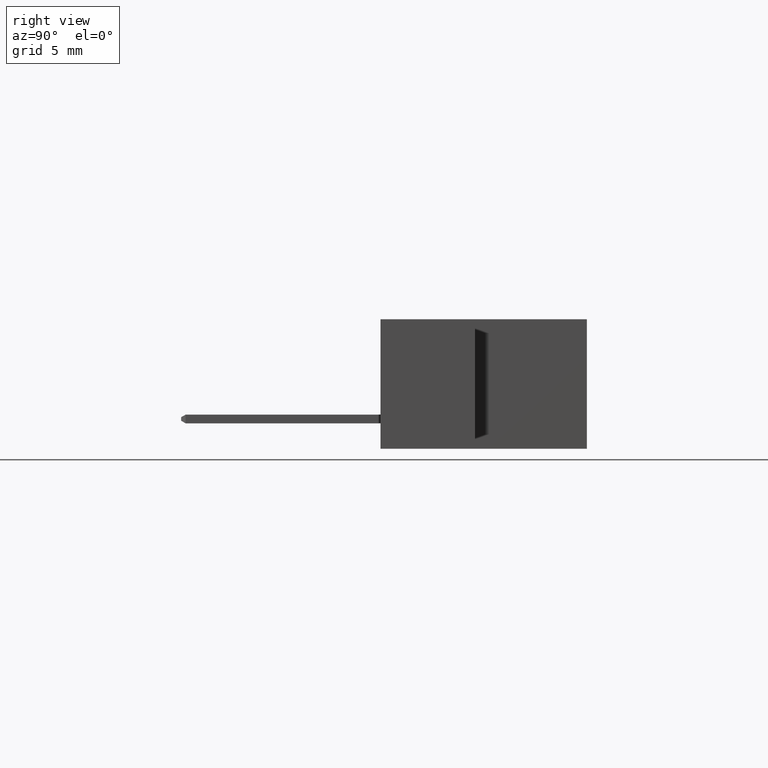
[diagram: clean part render]
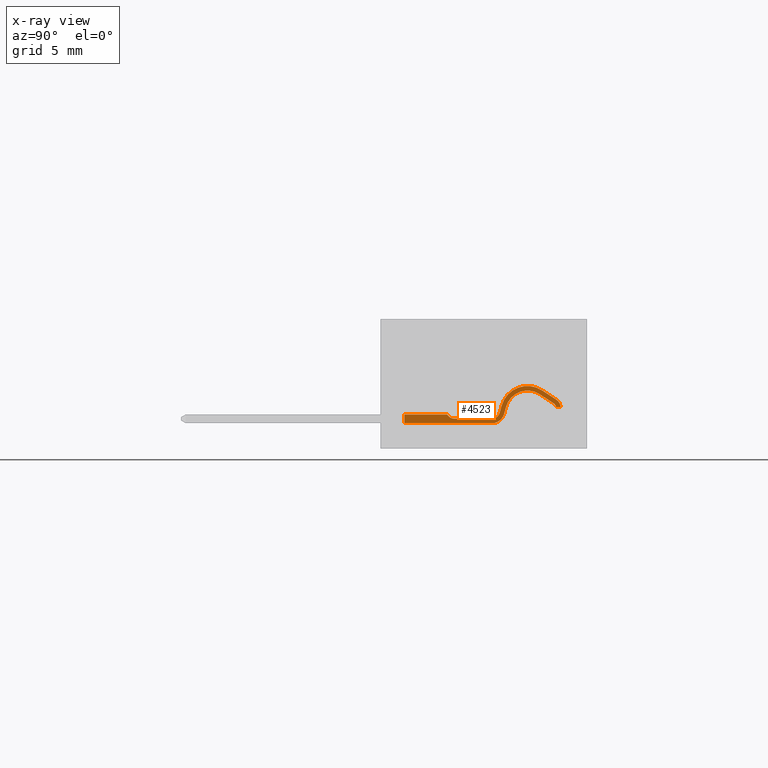
[diagram: x-ray — body ghosted, one internal face saturated and labeled with its STEP entity id]
A machine part, right view, then the same camera in x-ray: the body is ghosted and one INTERNAL B-rep face — a face not visible from any outside direction — is saturated and labeled: STEP entity #4523.
In plain terms, the highlighted planar face has unit normal (1, -0, 0).
Its self-contained STEP definition (entity closure, byte-faithful):
#44 = EDGE_LOOP ( 'NONE', ( #1834, #8979, #1513, #1386, #4441, #4100, #3955, #3529, #919, #498, #8111, #1373, #993, #823, #772, #619, #2179 ) ) ;
#55 = CARTESIAN_POINT ( 'NONE',  ( 0.4372132034355987700, 0.02549999999999410000, 0.02499999999999987000 ) ) ;
#66 = CARTESIAN_POINT ( 'NONE',  ( 0.1451768499521856900, 0.07965726579261930800, 0.02499999999999987000 ) ) ;
#105 = CARTESIAN_POINT ( 'NONE',  ( 0.1931676058038884800, 0.09559382557854878600, 0.02499999999999987000 ) ) ;
#157 = VECTOR ( 'NONE', #4060, 39.37007874015748100 ) ;
#193 = CARTESIAN_POINT ( 'NONE',  ( 0.3073628610514996300, 0.04269048811508388600, 0.02499999999999987000 ) ) ;
#234 = EDGE_CURVE ( 'NONE', #1043, #3950, #8834, .T. ) ;
#352 = CIRCLE ( 'NONE', #4210, 0.07649999999999998500 ) ;
#355 = DIRECTION ( 'NONE',  ( 1.000000000000000000, -5.449164880979240100E-015, 2.125174303581904000E-014 ) ) ;
#433 = VECTOR ( 'NONE', #8570, 39.37007874015748900 ) ;
#471 = EDGE_CURVE ( 'NONE', #2838, #3498, #2256, .T. ) ;
#492 = VECTOR ( 'NONE', #3507, 39.37007874015748100 ) ;
#498 = ORIENTED_EDGE ( 'NONE', *, *, #1290, .T. ) ;
#619 = ORIENTED_EDGE ( 'NONE', *, *, #1808, .F. ) ;
#737 = EDGE_CURVE ( 'NONE', #3398, #9151, #1850, .T. ) ;
#772 = ORIENTED_EDGE ( 'NONE', *, *, #8404, .F. ) ;
#822 = DIRECTION ( 'NONE',  ( 0.8361232374575536800, 0.5485416408838066400, 1.762539651899351900E-014 ) ) ;
#823 = ORIENTED_EDGE ( 'NONE', *, *, #7503, .F. ) ;
#919 = ORIENTED_EDGE ( 'NONE', *, *, #234, .F. ) ;
#993 = ORIENTED_EDGE ( 'NONE', *, *, #6542, .F. ) ;
#1043 = VERTEX_POINT ( 'NONE', #3465 ) ;
#1139 = VERTEX_POINT ( 'NONE', #6533 ) ;
#1165 = CARTESIAN_POINT ( 'NONE',  ( 0.1451768499521856900, 0.07965726579261930800, 0.02499999999999987000 ) ) ;
#1290 = EDGE_CURVE ( 'NONE', #1043, #6732, #3461, .T. ) ;
#1373 = ORIENTED_EDGE ( 'NONE', *, *, #9416, .T. ) ;
#1386 = ORIENTED_EDGE ( 'NONE', *, *, #737, .T. ) ;
#1460 = CARTESIAN_POINT ( 'NONE',  ( 0.1523078912836752000, 0.06878766370567110400, 0.02499999999999987000 ) ) ;
#1489 = CARTESIAN_POINT ( 'NONE',  ( 0.2948401884416852500, 0.03920011983832501900, 0.02499999999999987000 ) ) ;
#1513 = ORIENTED_EDGE ( 'NONE', *, *, #4974, .T. ) ;
#1562 = LINE ( 'NONE', #1165, #5481 ) ;
#1611 = CARTESIAN_POINT ( 'NONE',  ( 0.3300000000000102900, 0.02549999999999406600, 0.02499999999999987000 ) ) ;
#1808 = EDGE_CURVE ( 'NONE', #6950, #1139, #352, .T. ) ;
#1815 = VECTOR ( 'NONE', #8227, 39.37007874015748100 ) ;
#1834 = ORIENTED_EDGE ( 'NONE', *, *, #3342, .F. ) ;
#1850 = LINE ( 'NONE', #1856, #5749 ) ;
#1856 = CARTESIAN_POINT ( 'NONE',  ( 0.1523078912836752000, 0.06878766370567110400, 0.02499999999999987000 ) ) ;
#1904 = VERTEX_POINT ( 'NONE', #193 ) ;
#1961 = DIRECTION ( 'NONE',  ( 0.8361232374575536800, 0.5485416408838066400, 1.762539651899351900E-014 ) ) ;
#2014 = LINE ( 'NONE', #4068, #157 ) ;
#2102 = VECTOR ( 'NONE', #4809, 39.37007874015748100 ) ;
#2136 = DIRECTION ( 'NONE',  ( -2.116696985329355200E-014, 1.327134286314529600E-016, -1.000000000000000000 ) ) ;
#2177 = CARTESIAN_POINT ( 'NONE',  ( 0.1860365644723990000, 0.1064634276654969900, 0.02499999999999987000 ) ) ;
#2179 = ORIENTED_EDGE ( 'NONE', *, *, #9368, .F. ) ;
#2256 = LINE ( 'NONE', #9747, #8268 ) ;
#2327 = LINE ( 'NONE', #8920, #433 ) ;
#2552 = EDGE_CURVE ( 'NONE', #8729, #7061, #9558, .T. ) ;
#2602 = AXIS2_PLACEMENT_3D ( 'NONE', #8708, #8765, #8750 ) ;
#2611 = VECTOR ( 'NONE', #7727, 39.37007874015748100 ) ;
#2796 = DIRECTION ( 'NONE',  ( 1.000000000000000000, -5.379495193003257400E-015, 2.116714412899108000E-014 ) ) ;
#2806 = CARTESIAN_POINT ( 'NONE',  ( 0.3300000000000102900, 0.04899999999999410400, 0.02499999999999987000 ) ) ;
#2838 = VERTEX_POINT ( 'NONE', #8270 ) ;
#2846 = DIRECTION ( 'NONE',  ( 2.116696985329355200E-014, -1.327134286314529600E-016, 1.000000000000000000 ) ) ;
#2850 = LINE ( 'NONE', #3951, #2611 ) ;
#2985 = DIRECTION ( 'NONE',  ( -2.116696985329355200E-014, 1.327134286314529600E-016, -1.000000000000000000 ) ) ;
#3037 = DIRECTION ( 'NONE',  ( -1.000000000000000000, 5.058977766044929500E-015, -2.118446939531314200E-014 ) ) ;
#3098 = CARTESIAN_POINT ( 'NONE',  ( 0.1597132034356065800, 0.05749999999999412500, 0.02499999999999987000 ) ) ;
#3332 = CARTESIAN_POINT ( 'NONE',  ( 0.4582132034355987900, 0.03749999999999423900, 0.02499999999999987000 ) ) ;
#3342 = EDGE_CURVE ( 'NONE', #2838, #3854, #4783, .T. ) ;
#3362 = CIRCLE ( 'NONE', #5518, 0.02350000000000003500 ) ;
#3398 = VERTEX_POINT ( 'NONE', #1460 ) ;
#3461 = LINE ( 'NONE', #7702, #8701 ) ;
#3465 = CARTESIAN_POINT ( 'NONE',  ( 0.5802132034356045600, 0.03749999999999219200, 0.02499999999999987000 ) ) ;
#3498 = VERTEX_POINT ( 'NONE', #8136 ) ;
#3507 = DIRECTION ( 'NONE',  ( 5.301315481592246300E-015, -1.000000000000000000, 1.327134286314530100E-016 ) ) ;
#3529 = ORIENTED_EDGE ( 'NONE', *, *, #8457, .T. ) ;
#3545 = DIRECTION ( 'NONE',  ( -2.116696985329355200E-014, 1.327134286314529600E-016, -1.000000000000000000 ) ) ;
#3616 = CARTESIAN_POINT ( 'NONE',  ( 0.4372132034355987700, 0.04722792206135183900, 0.02499999999999987000 ) ) ;
#3854 = VERTEX_POINT ( 'NONE', #66 ) ;
#3950 = VERTEX_POINT ( 'NONE', #8930 ) ;
#3951 = CARTESIAN_POINT ( 'NONE',  ( 0.3016911118962256600, 0.06303947485938277100, 0.02499999999999987000 ) ) ;
#3954 = CIRCLE ( 'NONE', #5146, 0.06350000000000001500 ) ;
#3955 = ORIENTED_EDGE ( 'NONE', *, *, #4982, .T. ) ;
#3960 = EDGE_CURVE ( 'NONE', #6732, #7737, #2327, .T. ) ;
#4060 = DIRECTION ( 'NONE',  ( 1.000000000000000000, -4.942995692798874600E-015, 2.116696985329355200E-014 ) ) ;
#4068 = CARTESIAN_POINT ( 'NONE',  ( 0.3300000000000102900, 0.02549999999999406600, 0.02499999999999987000 ) ) ;
#4088 = DIRECTION ( 'NONE',  ( -1.000000000000000000, 5.356564693459340800E-015, -2.114727102938635500E-014 ) ) ;
#4100 = ORIENTED_EDGE ( 'NONE', *, *, #2552, .T. ) ;
#4210 = AXIS2_PLACEMENT_3D ( 'NONE', #8744, #2136, #4088 ) ;
#4297 = CARTESIAN_POINT ( 'NONE',  ( 0.2891684392864112800, 0.05954910658262390500, 0.02499999999999987000 ) ) ;
#4392 = DIRECTION ( 'NONE',  ( 1.000000000000000000, -5.107774430946911300E-015, 2.121690917470255400E-014 ) ) ;
#4441 = ORIENTED_EDGE ( 'NONE', *, *, #8094, .T. ) ;
#4523 = ADVANCED_FACE ( 'NONE', ( #5686 ), #8994, .F. ) ;
#4756 = VERTEX_POINT ( 'NONE', #6091 ) ;
#4783 = CIRCLE ( 'NONE', #6664, 0.02649999999999999200 ) ;
#4809 = DIRECTION ( 'NONE',  ( 1.000000000000000000, -4.942995692798874600E-015, 2.116696985329355200E-014 ) ) ;
#4974 = EDGE_CURVE ( 'NONE', #3498, #3398, #7410, .T. ) ;
#4982 = EDGE_CURVE ( 'NONE', #7061, #4756, #9310, .T. ) ;
#5021 = AXIS2_PLACEMENT_3D ( 'NONE', #3098, #2985, #3037 ) ;
#5146 = AXIS2_PLACEMENT_3D ( 'NONE', #8035, #3545, #8742 ) ;
#5481 = VECTOR ( 'NONE', #1961, 39.37007874015748900 ) ;
#5518 = AXIS2_PLACEMENT_3D ( 'NONE', #6235, #5769, #355 ) ;
#5686 = FACE_OUTER_BOUND ( 'NONE', #44, .T. ) ;
#5749 = VECTOR ( 'NONE', #822, 39.37007874015748900 ) ;
#5769 = DIRECTION ( 'NONE',  ( 2.116696985329355200E-014, -1.327134286314529600E-016, 1.000000000000000000 ) ) ;
#6091 = CARTESIAN_POINT ( 'NONE',  ( 0.3300000000000102900, 0.01249999999999406100, 0.02499999999999987000 ) ) ;
#6235 = CARTESIAN_POINT ( 'NONE',  ( 0.3300000000000102900, 0.04899999999999410400, 0.02499999999999987000 ) ) ;
#6293 = CARTESIAN_POINT ( 'NONE',  ( 0.5802132034356045600, 0.03749999999999219200, 0.02499999999999987000 ) ) ;
#6524 = AXIS2_PLACEMENT_3D ( 'NONE', #2806, #2846, #2796 ) ;
#6533 = CARTESIAN_POINT ( 'NONE',  ( 0.3016911118962256600, 0.06303947485938277100, 0.02499999999999987000 ) ) ;
#6542 = EDGE_CURVE ( 'NONE', #7040, #7878, #2014, .T. ) ;
#6562 = CARTESIAN_POINT ( 'NONE',  ( 0.2891684392864112800, 0.05954910658262390500, 0.02499999999999987000 ) ) ;
#6664 = AXIS2_PLACEMENT_3D ( 'NONE', #7309, #7278, #7427 ) ;
#6732 = VERTEX_POINT ( 'NONE', #3332 ) ;
#6950 = VERTEX_POINT ( 'NONE', #2177 ) ;
#7040 = VERTEX_POINT ( 'NONE', #1611 ) ;
#7061 = VERTEX_POINT ( 'NONE', #1489 ) ;
#7167 = DIRECTION ( 'NONE',  ( 1.000000000000000000, -5.301315481592246300E-015, 2.116696985329361800E-014 ) ) ;
#7278 = DIRECTION ( 'NONE',  ( -2.116696985329355200E-014, 1.327134286314529600E-016, -1.000000000000000000 ) ) ;
#7309 = CARTESIAN_POINT ( 'NONE',  ( 0.1597132034356065800, 0.05749999999999412500, 0.02499999999999987000 ) ) ;
#7410 = CIRCLE ( 'NONE', #5021, 0.01350000000000000700 ) ;
#7427 = DIRECTION ( 'NONE',  ( -1.000000000000000000, 5.154430176725026200E-015, -2.110094853596807800E-014 ) ) ;
#7503 = EDGE_CURVE ( 'NONE', #1904, #7040, #3362, .T. ) ;
#7702 = CARTESIAN_POINT ( 'NONE',  ( 0.4582132034355987900, 0.03749999999999423900, 0.02499999999999987000 ) ) ;
#7727 = DIRECTION ( 'NONE',  ( 0.2684898674429880800, -0.9632825084472607100, 5.810957454517123800E-015 ) ) ;
#7737 = VERTEX_POINT ( 'NONE', #8315 ) ;
#7878 = VERTEX_POINT ( 'NONE', #55 ) ;
#8035 = CARTESIAN_POINT ( 'NONE',  ( 0.2280000000000102500, 0.04249999999999415400, 0.02499999999999987000 ) ) ;
#8094 = EDGE_CURVE ( 'NONE', #9151, #8729, #3954, .T. ) ;
#8111 = ORIENTED_EDGE ( 'NONE', *, *, #3960, .T. ) ;
#8136 = CARTESIAN_POINT ( 'NONE',  ( 0.1462224658723745600, 0.05799999999999429900, 0.02499999999999987000 ) ) ;
#8137 = LINE ( 'NONE', #9186, #2102 ) ;
#8227 = DIRECTION ( 'NONE',  ( 0.2684898674429880800, -0.9632825084472607100, 5.810957454517123800E-015 ) ) ;
#8268 = VECTOR ( 'NONE', #7167, 39.37007874015748100 ) ;
#8270 = CARTESIAN_POINT ( 'NONE',  ( 0.1332179208366230400, 0.05799999999999429900, 0.02499999999999987000 ) ) ;
#8315 = CARTESIAN_POINT ( 'NONE',  ( 0.4525771644662779900, 0.03186396103067323100, 0.02499999999999987000 ) ) ;
#8404 = EDGE_CURVE ( 'NONE', #1139, #1904, #2850, .T. ) ;
#8457 = EDGE_CURVE ( 'NONE', #4756, #3950, #8137, .T. ) ;
#8570 = DIRECTION ( 'NONE',  ( -0.7071067811865292500, -0.7071067811865656700, -1.487346535509506000E-014 ) ) ;
#8639 = DIRECTION ( 'NONE',  ( -1.000000000000000000, 5.301315481592247100E-015, -2.120195766058952000E-014 ) ) ;
#8678 = CIRCLE ( 'NONE', #9304, 0.02172792206135780400 ) ;
#8701 = VECTOR ( 'NONE', #8639, 39.37007874015748100 ) ;
#8708 = CARTESIAN_POINT ( 'NONE',  ( 0.09500000000001032600, 0.02499999999999413500, 0.02499999999999987000 ) ) ;
#8729 = VERTEX_POINT ( 'NONE', #4297 ) ;
#8742 = DIRECTION ( 'NONE',  ( -1.000000000000000000, 5.243212192564283700E-015, -2.117451077766345200E-014 ) ) ;
#8744 = CARTESIAN_POINT ( 'NONE',  ( 0.2280000000000102500, 0.04249999999999415400, 0.02499999999999987000 ) ) ;
#8750 = DIRECTION ( 'NONE',  ( -1.000000000000000000, 5.301315481592246300E-015, -2.116696985329361800E-014 ) ) ;
#8765 = DIRECTION ( 'NONE',  ( 2.116696985329361800E-014, 1.327134286312285300E-016, -1.000000000000000000 ) ) ;
#8815 = DIRECTION ( 'NONE',  ( -2.116696985329355200E-014, 1.327134286314529600E-016, -1.000000000000000000 ) ) ;
#8834 = LINE ( 'NONE', #6293, #492 ) ;
#8920 = CARTESIAN_POINT ( 'NONE',  ( 0.4582132034355987900, 0.03749999999999423900, 0.02499999999999987000 ) ) ;
#8930 = CARTESIAN_POINT ( 'NONE',  ( 0.5802132034356045600, 0.01249999999999214900, 0.02499999999999987000 ) ) ;
#8979 = ORIENTED_EDGE ( 'NONE', *, *, #471, .T. ) ;
#8994 = PLANE ( 'NONE',  #2602 ) ;
#9151 = VERTEX_POINT ( 'NONE', #105 ) ;
#9186 = CARTESIAN_POINT ( 'NONE',  ( 0.3300000000000102900, 0.01249999999999406100, 0.02499999999999987000 ) ) ;
#9304 = AXIS2_PLACEMENT_3D ( 'NONE', #3616, #8815, #4392 ) ;
#9310 = CIRCLE ( 'NONE', #6524, 0.03650000000000000500 ) ;
#9368 = EDGE_CURVE ( 'NONE', #3854, #6950, #1562, .T. ) ;
#9416 = EDGE_CURVE ( 'NONE', #7737, #7878, #8678, .T. ) ;
#9558 = LINE ( 'NONE', #6562, #1815 ) ;
#9747 = CARTESIAN_POINT ( 'NONE',  ( 0.1462132034356065600, 0.05799999999999429900, 0.02499999999999987000 ) ) ;